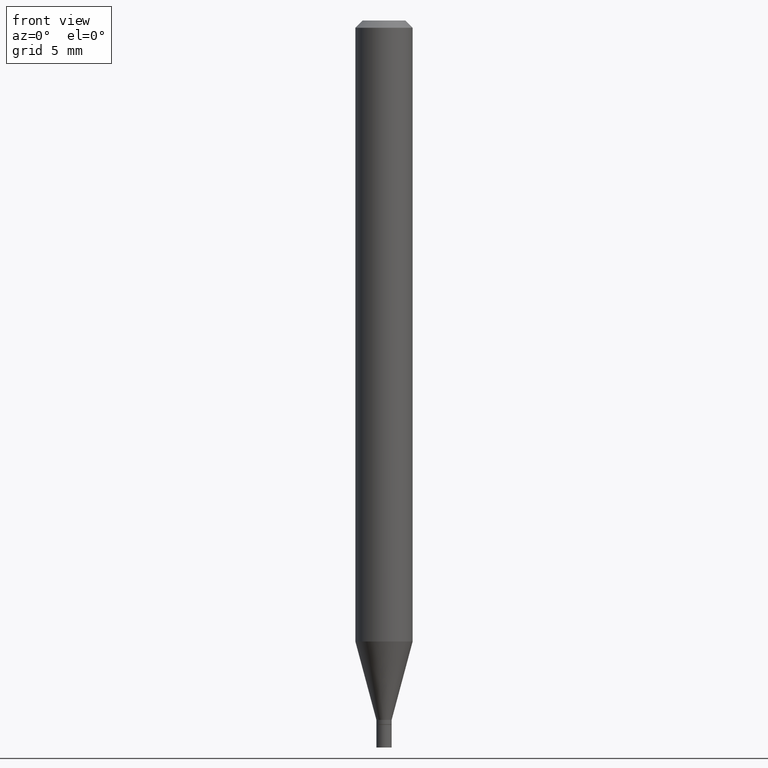
[diagram: clean part render]
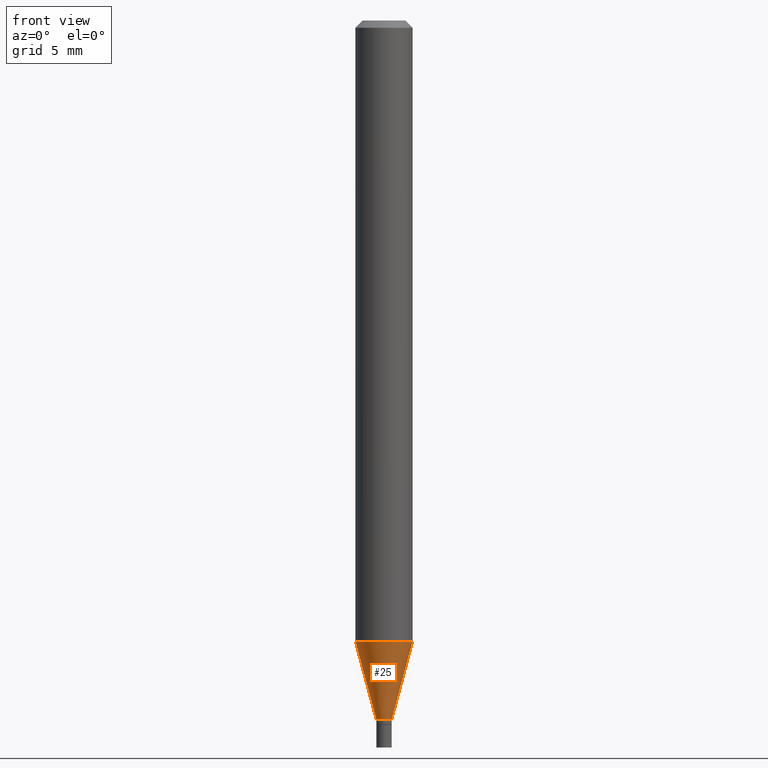
[diagram: same view with one face highlighted and labeled with its STEP entity id]
A machine part, front view. The second image highlights one B-rep face of the part: STEP entity #25.
In plain terms, the highlighted conical surface has half-angle 15 deg.
Its self-contained STEP definition (entity closure, byte-faithful):
#8 = CONICAL_SURFACE ( 'NONE', #148, 0.01574999999999992725, 0.2617993877991502405 ) ;
#15 = VERTEX_POINT ( 'NONE', #136 ) ;
#25 = ADVANCED_FACE ( 'NONE', ( #202 ), #8, .T. ) ;
#28 = ORIENTED_EDGE ( 'NONE', *, *, #390, .T. ) ;
#31 = VECTOR ( 'NONE', #255, 39.37007874015748143 ) ;
#54 = CARTESIAN_POINT ( 'NONE',  ( 3.528811487325152432E-29, -5.038207571950659670E-15, -1.443000000000000060 ) ) ;
#55 = DIRECTION ( 'NONE',  ( -2.445468806185136597E-29, 3.491481338843145583E-15, 1.000000000000000000 ) ) ;
#66 = EDGE_CURVE ( 'NONE', #277, #15, #425, .T. ) ;
#93 = LINE ( 'NONE', #120, #31 ) ;
#94 = VECTOR ( 'NONE', #310, 39.37007874015748143 ) ;
#104 = ORIENTED_EDGE ( 'NONE', *, *, #66, .T. ) ;
#107 = EDGE_LOOP ( 'NONE', ( #329, #28, #104, #210 ) ) ;
#120 = CARTESIAN_POINT ( 'NONE',  ( -0.01574999999999992725, -4.926297091068444383E-15, -1.443000000000000060 ) ) ;
#136 = CARTESIAN_POINT ( 'NONE',  ( 0.05904999999999999832, -4.886335815082588610E-15, -1.281402200032268013 ) ) ;
#148 = AXIS2_PLACEMENT_3D ( 'NONE', #383, #211, #351 ) ;
#171 = CARTESIAN_POINT ( 'NONE',  ( 0.01574999999999992725, -5.148189234124217550E-15, -1.443000000000000060 ) ) ;
#174 = VERTEX_POINT ( 'NONE', #366 ) ;
#200 = AXIS2_PLACEMENT_3D ( 'NONE', #303, #410, #331 ) ;
#202 = FACE_OUTER_BOUND ( 'NONE', #107, .T. ) ;
#210 = ORIENTED_EDGE ( 'NONE', *, *, #315, .F. ) ;
#211 = DIRECTION ( 'NONE',  ( -2.445468806185136597E-29, 3.491481338843145583E-15, 1.000000000000000000 ) ) ;
#255 = DIRECTION ( 'NONE',  ( -0.2588190451025215166, 5.211531920934551042E-15, 0.9659258262890679791 ) ) ;
#277 = VERTEX_POINT ( 'NONE', #450 ) ;
#302 = DIRECTION ( 'NONE',  ( 1.000000000000000000, -6.982962677686257244E-15, 0.000000000000000000 ) ) ;
#303 = CARTESIAN_POINT ( 'NONE',  ( 3.133629108355918061E-29, -4.473991868965215268E-15, -1.281402200032268013 ) ) ;
#310 = DIRECTION ( 'NONE',  ( 0.2588190451025215166, 1.565188264969620784E-15, 0.9659258262890679791 ) ) ;
#315 = EDGE_CURVE ( 'NONE', #174, #15, #396, .T. ) ;
#325 = EDGE_CURVE ( 'NONE', #451, #174, #93, .T. ) ;
#327 = AXIS2_PLACEMENT_3D ( 'NONE', #54, #55, #302 ) ;
#329 = ORIENTED_EDGE ( 'NONE', *, *, #325, .F. ) ;
#331 = DIRECTION ( 'NONE',  ( 1.000000000000000000, -6.982962677686273021E-15, 0.000000000000000000 ) ) ;
#337 = CIRCLE ( 'NONE', #327, 0.01574999999999992725 ) ;
#351 = DIRECTION ( 'NONE',  ( 1.000000000000000000, -6.982962677686257244E-15, 0.000000000000000000 ) ) ;
#366 = CARTESIAN_POINT ( 'NONE',  ( -0.05904999999999999832, -4.054416383498875775E-15, -1.281402200032268013 ) ) ;
#383 = CARTESIAN_POINT ( 'NONE',  ( 3.528811487325152432E-29, -5.038207571950659670E-15, -1.443000000000000060 ) ) ;
#390 = EDGE_CURVE ( 'NONE', #451, #277, #337, .T. ) ;
#396 = CIRCLE ( 'NONE', #200, 0.05904999999999999832 ) ;
#397 = CARTESIAN_POINT ( 'NONE',  ( -0.01574999999999992725, -4.490356737283660473E-15, -1.443000000000000060 ) ) ;
#410 = DIRECTION ( 'NONE',  ( -2.445468806185136597E-29, 3.491481338843145583E-15, 1.000000000000000000 ) ) ;
#425 = LINE ( 'NONE', #171, #94 ) ;
#450 = CARTESIAN_POINT ( 'NONE',  ( 0.01574999999999992725, -5.148189234124217550E-15, -1.443000000000000060 ) ) ;
#451 = VERTEX_POINT ( 'NONE', #397 ) ;